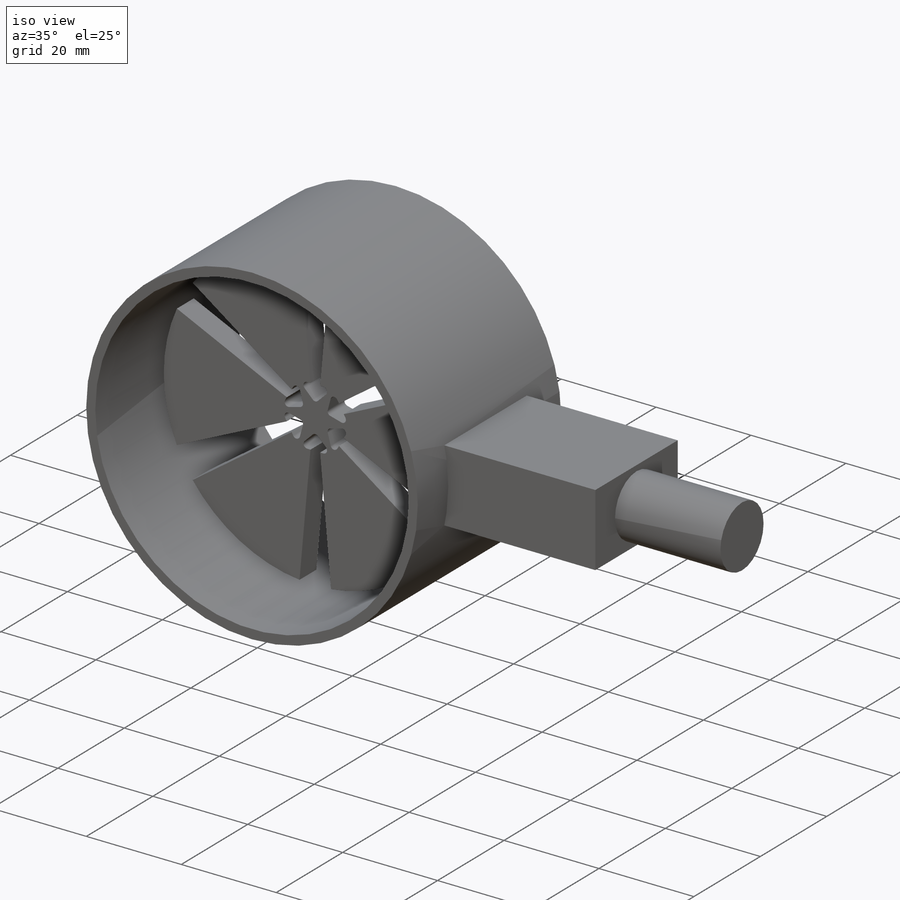
[diagram: iso view]
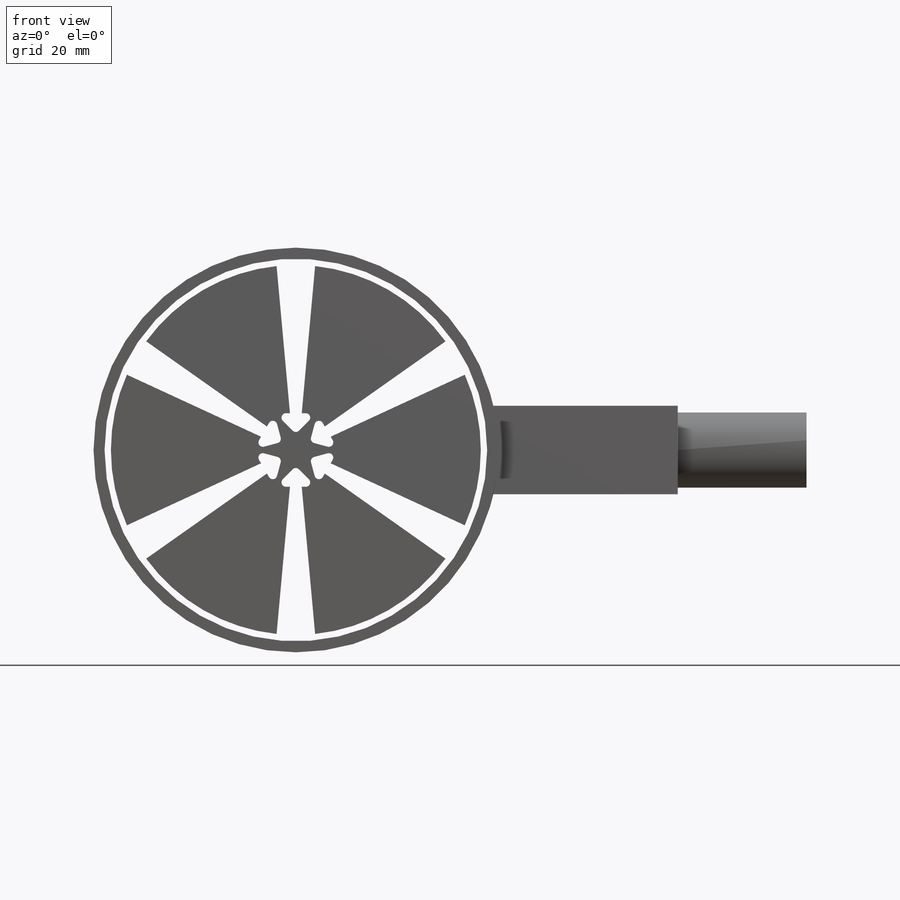
[diagram: front view]
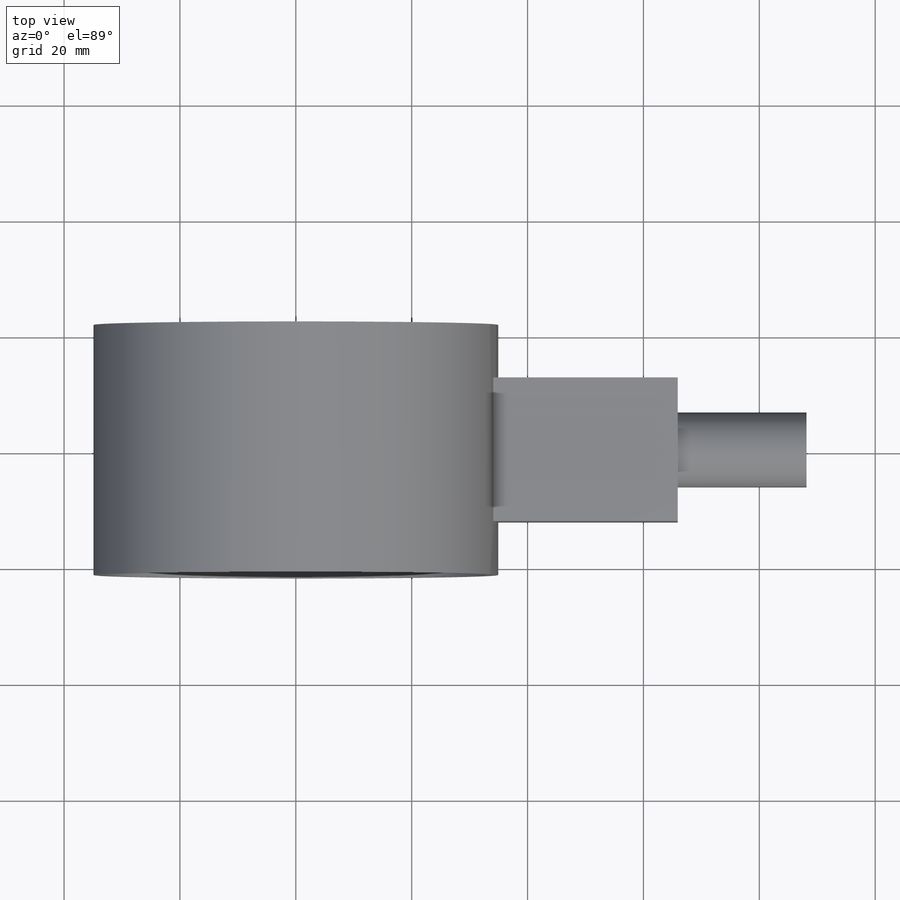
[diagram: top view]
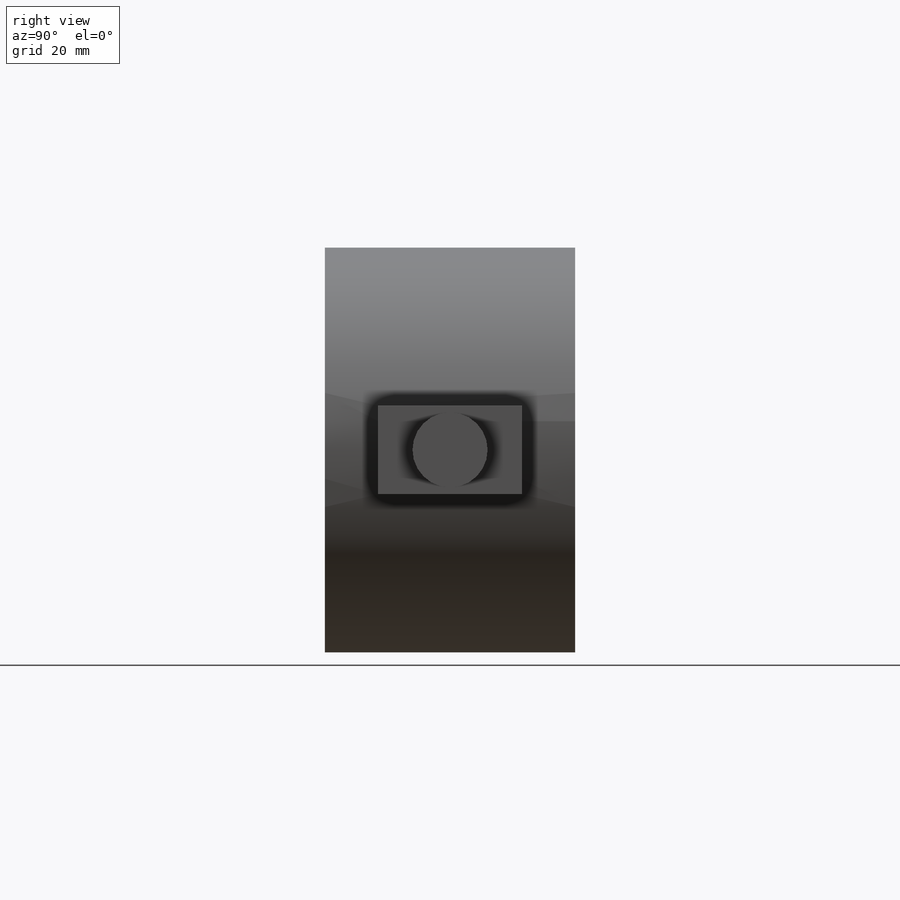
[diagram: right view]
SOLIDWORKS PART (.sldprt)
format: sldprt  version: not decoded by parser v0  size: 255,488 bytes
history: native  units: mm
features: sketch x6, extrude x4, material x1, plane x1, cut_extrude x1, pattern_circular x1 (+16 scaffold rows collapsed)
feature tree (30):
  scaffold x16  (default folders/planes/origin — collapsed)
  material  "Brass"
  sketch  "Sketch1"  dims[D1=69.85mm D2=66.04mm]
  extrude  "Boss-Extrude1"  Depth=43.18mm
  plane  "Plane1"  Offset=33.528mm
  sketch  "Sketch2"
  extrude  "Boss-Extrude2"  Depth=5.08mm
  sketch  "Sketch5"
  extrude  "Boss-Extrude3"  Depth=32.385mm
  sketch  "Sketch3"  dims[c1.D9=0.762mm c1.D1=2.54mm c1.D2=6.35mm c1.D3=6.35mm c1.D4=3.556mm c1.D5=~7.638143mm c2.D1=3.556mm c2.D5=2.032mm c2.D6=1.016mm c2.D7=25.4mm c2.D8=25.4mm]
  cut_extrude  "Cut-Extrude1"  Depth=5.08mm
  sketch  "Sketch4"
  pattern_circular  "CirPattern1"  Count=6 Angle=60deg
  sketch  "Sketch6"
  extrude  "Boss-Extrude4"  Depth=22.225mm
decode coverage: 8 of 12 modeling features carry decoded parameters
note: ~ marks probable driven/reference dimensions
note: suppression state not decoded; provenance and decode notes live in map.json
